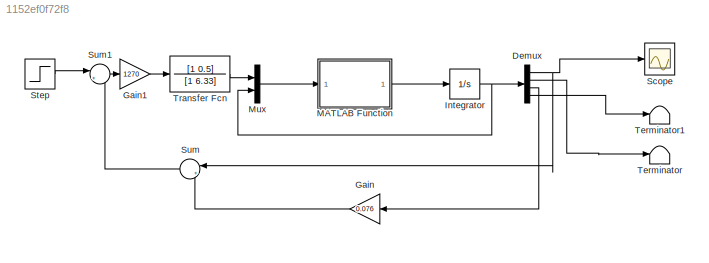
MODEL slx_1152ef0f72f8
KIND model
CONFIG AbsTol = auto
CONFIG FixedStep = auto
CONFIG MaxStep = auto
CONFIG MinStep = auto
CONFIG RelTol = 1e-3
CONFIG SampleTimeConstraint = Unconstrained
CONFIG Solver = VariableStepAuto
CONFIG SolverMode = Auto
CONFIG SolverName = VariableStepAuto
CONFIG StartTime = 0.0
CONFIG StopTime = 1000
BLOCK [Demux] Demux
  DisplayOption = bar
  Ports = [1, 4]
BLOCK [Gain] Gain
  Gain = 0.076
  OutDataTypeStr = Inherit: Inherit via internal rule
  ParamDataTypeStr = Inherit: Inherit via internal rule
  SaturateOnIntegerOverflow = off
BLOCK [Gain] Gain1
  Gain = 1270
  OutDataTypeStr = Inherit: Inherit via internal rule
  ParamDataTypeStr = Inherit: Inherit via internal rule
  SaturateOnIntegerOverflow = off
BLOCK [Integrator] Integrator
  Ports = [1, 1]
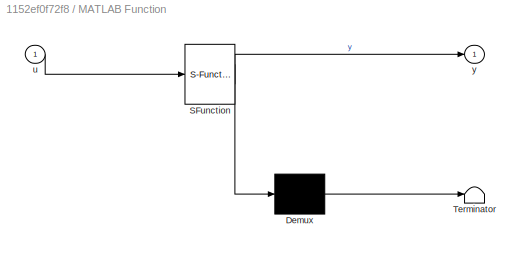
BLOCK [SubSystem] MATLAB Function
  ErrorFcn = Stateflow.Translate.translate
  PermitHierarchicalResolution = ExplicitOnly
  Ports = [1, 1]
  RequestExecContextInheritance = off
  SFBlockType = MATLAB Function
  TreatAsAtomicUnit = on
  Variant = off
BLOCK [Demux] MATLAB Function/ Demux 
  Outputs = 1
  Ports = [1, 1]
BLOCK [S-Function] MATLAB Function/ SFunction 
  EnableBusSupport = on
  FunctionName = sf_sfun
  PortCounts = [1 2]
  Ports = [1, 2]
  SFunctionDeploymentMode = off
  Tag = Stateflow S-Function nonlinearmodelwithleadcontroller 2
BLOCK [Terminator] MATLAB Function/ Terminator 
BLOCK [Inport] MATLAB Function/u
  IconDisplay = Port number
BLOCK [Outport] MATLAB Function/y
  IconDisplay = Port number
BLOCK [Mux] Mux
  DisplayOption = bar
  Inputs = 2
  Ports = [2, 1]
BLOCK [Scope] Scope
  Ports = [1]
  ScopeSpecificationString = Simulink.scopes.TimeScopeBlockCfg('CurrentConfiguration', extmgr.ConfigurationSet(extmgr.Configuration('Core','General UI',true),extmgr.Configuration('Core','Source UI',true),extmgr.Configuration('Sources','WiredSimulink',true),extmgr.Configuration('Visuals','Time Domain',true,'SerializedDisplays',{struct('MinYLimReal','0.08087','MaxYLimReal','2.16773','YLabelReal','','MinYLimMag','0.08087','MaxYL...<+1406ch>
BLOCK [Step] Step
  SampleTime = 0
BLOCK [Sum] Sum
  IconShape = round
  InputSameDT = off
  Inputs = |++
  OutDataTypeStr = Inherit: Inherit via internal rule
  Ports = [2, 1]
  SaturateOnIntegerOverflow = off
BLOCK [Sum] Sum1
  IconShape = round
  InputSameDT = off
  Inputs = |+-
  OutDataTypeStr = Inherit: Inherit via internal rule
  Ports = [2, 1]
  SaturateOnIntegerOverflow = off
BLOCK [Terminator] Terminator
BLOCK [Terminator] Terminator1
BLOCK [TransferFcn] Transfer Fcn
  Denominator = [1 6.33]
  Numerator = [1 0.5]
NET Demux:1 -> Scope:1, Sum:1
LINE Demux:2 -> Terminator:1
LINE Demux:3 -> Gain:1
LINE Demux:4 -> Terminator1:1
LINE Gain1:1 -> Transfer Fcn:1
LINE Gain:1 -> Sum:2
NET Integrator:1 -> Demux:1, Mux:2
LINE MATLAB Function:1 -> Integrator:1
LINE Mux:1 -> MATLAB Function:1
LINE Step:1 -> Sum1:1
LINE Sum1:1 -> Gain1:1
LINE Sum:1 -> Sum1:2
LINE Transfer Fcn:1 -> Mux:1
note: NET lines group one-source signal fan-out (src -> all destinations, sorted); 1:1 wires keep LINE
CHART MATLAB Function states=1 transitions=1
  STATE_LABEL 'eML_blk_kernel()'
  STATE_LABEL 'SCRIPT:\nfunction y = fcn(u)\n%#codegen\nc1 = 1350;\nc2 = 1350/4;\nc3 = 1350/2;\nc4 = 2700;\nc5 = 1350;\nc6 = 3091;\na = 0.734;\nb = 0.67391;\nw = 18;\nuu = u(1);\nx = u(2:5);\ny = u(1:4);\ny(1) = x(2);\ny(2) = (-8*c1^2*x(2)*x(3)*x(4)+(c5*a+b*c4)*(-2*c1*x(2)^2*x(3)+2*c1*x(3)*w^2) + 2*c1*uu)/(2*c1*c6+4*c1^2*x(3)^2-c5^2*a^2-2*c5*a*c4*b-c4^2*b^2);\ny(3) = x(4);\ny(4) = (4*(c5*a+c4*b)*c1*x(2)*x(3)*x(4)-(c6+2*c1*x(3)^2)...<+105ch>'
